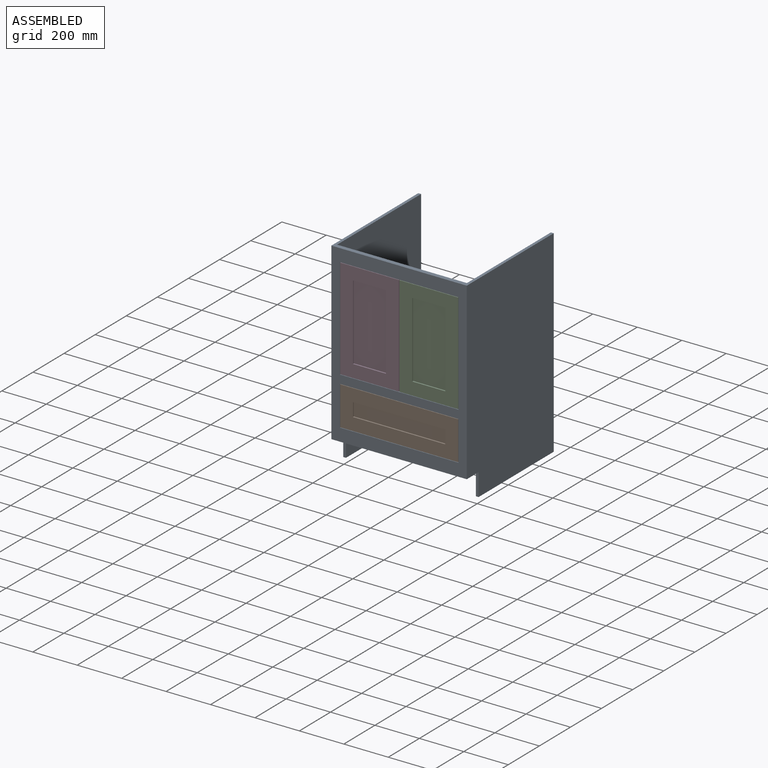
[diagram: assembled view]
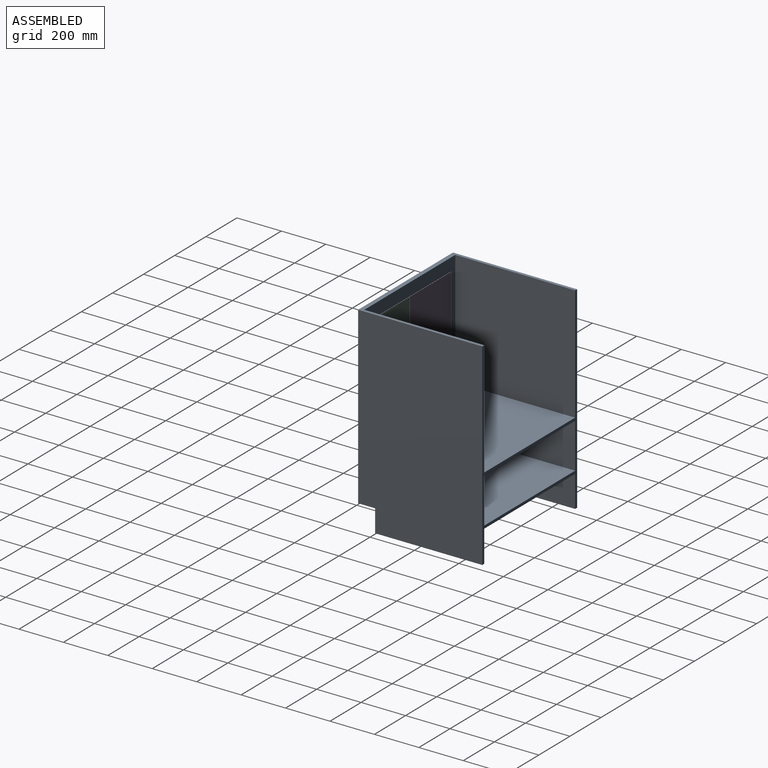
[diagram: assembled view, second angle]
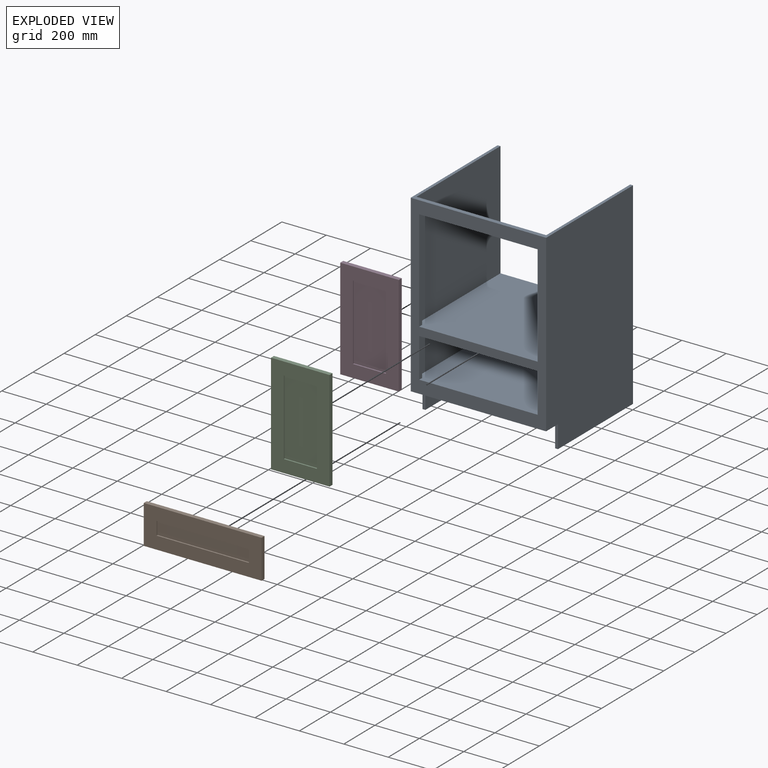
[diagram: exploded view]
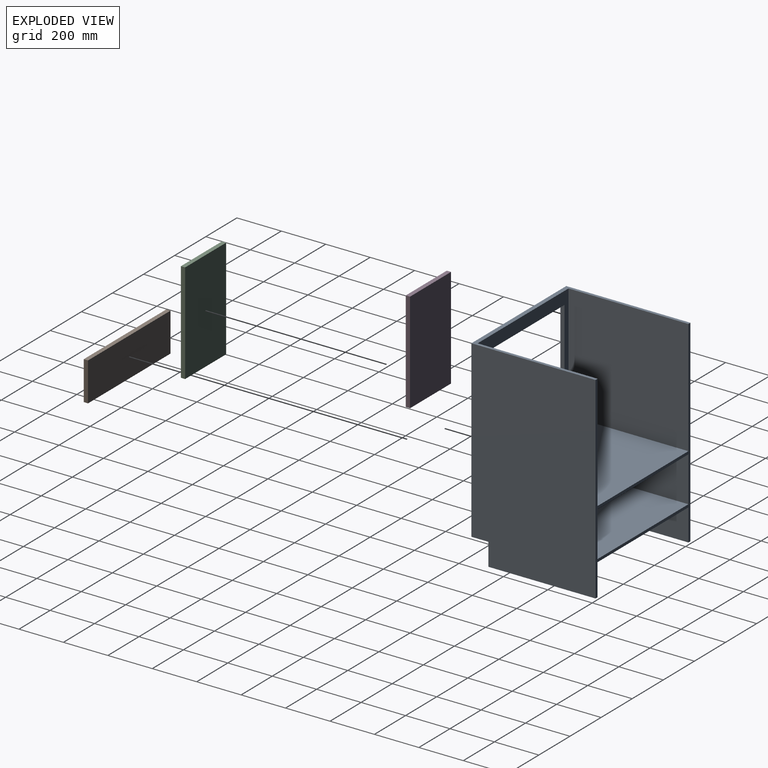
[diagram: exploded view, second angle]
ASSEMBLY  parts=4 mates=3
PART A: 31 faces, bbox 609.6x558.8x889 mm
  f0: plane 889x558.8mm, normal (-1,0,0), area 489031.3mm2, adj f6,f7,f17,f18,f27,f30
  f1: plane 889x558.8mm, normal (1,0,0), area 489031.3mm2, adj f6,f7,f17,f18,f25,f29
  f2: plane 539.75x142.88mm, normal (-1,0,0), area 71310.3mm2, adj f4,f7,f18,f25,f26,f29
  f3: plane 539.75x142.88mm, normal (1,0,0), area 71310.3mm2, adj f4,f7,f18,f26,f27,f30
  f4: plane 584.2x41.28mm, normal (0,1,0), area 24112.9mm2, adj f2,f3,f7,f26
  f5: plane 584.2x517.53mm, normal (0,1,0), area 58467.6mm2, adj f6,f11,f12,f13,f15,f22,f23,f24
  f6: plane 609.6x558.8mm, normal (0,0,1), area 25322.5mm2, adj f0,f1,f5,f17,f18,f22,f24
  f7: plane 609.6x76.2mm, normal (0,0,-1), area 13064.5mm2, adj f0,f1,f2,f3,f4,f17,f29,f30
  f8: plane 177.8x19.05mm, normal (1,0,0), area 3387.1mm2, adj f9,f14,f16,f17
  f9: plane 533.4x19.05mm, normal (0,0,-1), area 10161.3mm2, adj f8,f10,f16,f17
  f10: plane 177.8x19.05mm, normal (-1,0,0), area 3387.1mm2, adj f9,f14,f16,f17
  f11: plane 457.2x19.05mm, normal (1,0,0), area 8709.7mm2, adj f5,f12,f15,f17
  f12: plane 533.4x19.05mm, normal (0,0,-1), area 10161.3mm2, adj f5,f11,f13,f17
  f13: plane 457.2x19.05mm, normal (-1,0,0), area 8709.7mm2, adj f5,f12,f15,f17
  f14: plane 533.4x19.05mm, normal (0,0,1), area 10161.3mm2, adj f8,f10,f16,f17
  f15: plane 533.4x19.05mm, normal (0,0,1), area 10161.3mm2, adj f5,f11,f13,f17
  f16: plane 584.2x203.2mm, normal (0,1,0), area 23870.9mm2, adj f8,f9,f10,f14,f19,f20,f21,f28
  f17: plane 787.4x609.6mm, normal (0,-1,0), area 141290mm2, adj f0,f1,f6,f7,f8,f9,f10,f11
  f18: plane 889x609.6mm, normal (0,1,0), area 37419.3mm2, adj f0,f1,f2,f3,f6,f19,f20,f21
  f19: plane 584.2x539.75mm, normal (0,0,-1), area 315322mm2, adj f16,f18,f20,f28
  f20: plane 539.75x203.2mm, normal (1,0,0), area 109677.2mm2, adj f16,f18,f19,f21
  f21: plane 584.2x539.75mm, normal (0,0,1), area 315322mm2, adj f16,f18,f20,f28
  f22: plane 539.75x517.53mm, normal (1,0,0), area 279334.1mm2, adj f5,f6,f18,f23
  f23: plane 584.2x539.75mm, normal (0,0,1), area 315322mm2, adj f5,f18,f22,f24
  f24: plane 539.75x517.53mm, normal (-1,0,0), area 279334.1mm2, adj f5,f6,f18,f23
  f25: plane 482.6x12.7mm, normal (0,0,-1), area 6129mm2, adj f1,f2,f18,f29
  f26: plane 584.2x539.75mm, normal (0,0,-1), area 315322mm2, adj f2,f3,f4,f18
  f27: plane 482.6x12.7mm, normal (0,0,-1), area 6129mm2, adj f0,f3,f18,f30
  f28: plane 539.75x203.2mm, normal (-1,0,0), area 109677.2mm2, adj f16,f18,f19,f21
  f29: plane 101.6x12.7mm, normal (0,-1,0), area 1290.3mm2, adj f1,f2,f7,f25
  f30: plane 101.6x12.7mm, normal (0,-1,0), area 1290.3mm2, adj f0,f3,f7,f27
PART B: 11 faces, bbox 530.2x19.1x174.6 mm
  f0: plane 530.23x174.63mm, normal (0,-1,0), area 67499.9mm2, adj f1,f2,f3,f4,f6,f7,f8,f9
  f1: plane 530.23x19.05mm, normal (0,0,1), area 10100.8mm2, adj f0,f2,f4,f5
  f2: plane 174.63x19.05mm, normal (-1,0,0), area 3326.6mm2, adj f0,f1,f3,f5
  f3: plane 530.23x19.05mm, normal (0,0,-1), area 10100.8mm2, adj f0,f2,f4,f5
  f4: plane 174.63x19.05mm, normal (1,0,0), area 3326.6mm2, adj f0,f1,f3,f5
  f5: plane 530.23x174.63mm, normal (0,1,0), area 92590.5mm2, adj f1,f2,f3,f4
  f6: plane 415.93x6.35mm, normal (0,0,-1), area 2641.1mm2, adj f0,f7,f9,f10
  f7: plane 60.33x6.35mm, normal (1,0,0), area 383.1mm2, adj f0,f6,f8,f10
  f8: plane 415.93x6.35mm, normal (0,0,1), area 2641.1mm2, adj f0,f7,f9,f10
  f9: plane 60.33x6.35mm, normal (-1,0,0), area 383.1mm2, adj f0,f6,f8,f10
  f10: plane 415.93x60.33mm, normal (0,-1,0), area 25090.7mm2, adj f6,f7,f8,f9
PART C: 11 faces, bbox 263.5x19.1x454 mm
  f0: plane 454.03x263.53mm, normal (0,-1,0), area 68951.5mm2, adj f1,f2,f3,f4,f6,f7,f8,f9
  f1: plane 263.53x19.05mm, normal (0,0,1), area 5020.2mm2, adj f0,f2,f4,f5
  f2: plane 454.03x19.05mm, normal (-1,0,0), area 8649.2mm2, adj f0,f1,f3,f5
  f3: plane 263.53x19.05mm, normal (0,0,-1), area 5020.2mm2, adj f0,f2,f4,f5
  f4: plane 454.03x19.05mm, normal (1,0,0), area 8649.2mm2, adj f0,f1,f3,f5
  f5: plane 454.03x263.53mm, normal (0,1,0), area 119646.9mm2, adj f1,f2,f3,f4
  f6: plane 149.23x6.35mm, normal (0,0,-1), area 947.6mm2, adj f0,f7,f9,f10
  f7: plane 339.73x6.35mm, normal (1,0,0), area 2157.3mm2, adj f0,f6,f8,f10
  f8: plane 149.23x6.35mm, normal (0,0,1), area 947.6mm2, adj f0,f7,f9,f10
  f9: plane 339.73x6.35mm, normal (-1,0,0), area 2157.3mm2, adj f0,f6,f8,f10
  f10: plane 339.73x149.23mm, normal (0,-1,0), area 50695.5mm2, adj f6,f7,f8,f9
PART D: same geometry as C
PLACE A t=(-1717.62,500.91,-362.49)mm fixed
PLACE B t=(-1717.62,500.91,-362.49)mm
PLACE C t=(-1450.92,500.91,-362.49)mm
PLACE D t=(-1717.62,500.91,-362.49)mm
MATE fastened A.f17 <-> B.f0  axis (0,-1,0) through (22.28,-57.89,-25.94)mm
MATE fastened A.f17 <-> C.f0  axis (0,-1,0) through (555.68,-57.89,469.36)mm
MATE fastened A.f17 <-> D.f0  axis (0,-1,0) through (22.28,-57.89,469.36)mm
